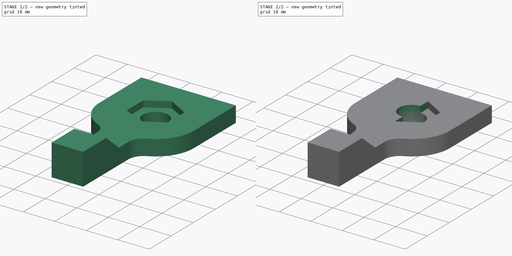
[diagram: build sequence overview — one tinted view per stage of 2, left to right]
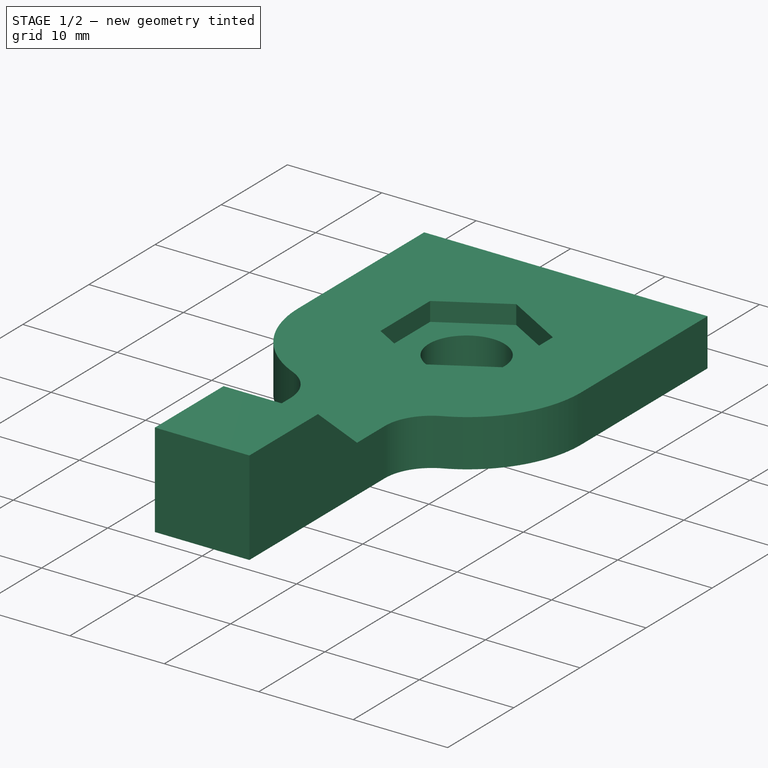
[diagram: stage 1 of 2 — iso view after this stage's code; geometry added in this stage tinted green]
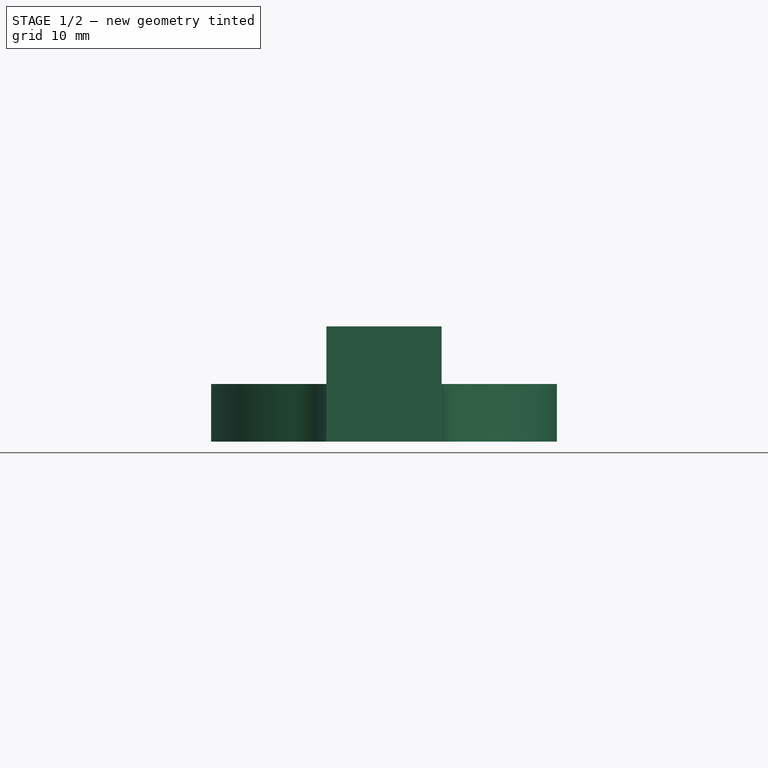
[diagram: stage 1 of 2 — front view after this stage's code; geometry added in this stage tinted green]
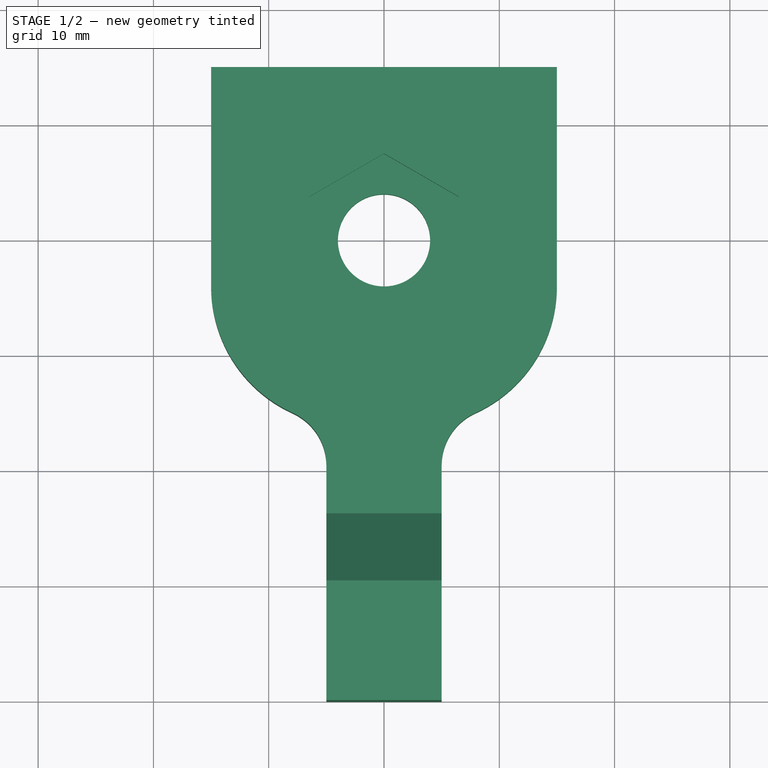
[diagram: stage 1 of 2 — top view after this stage's code; geometry added in this stage tinted green]
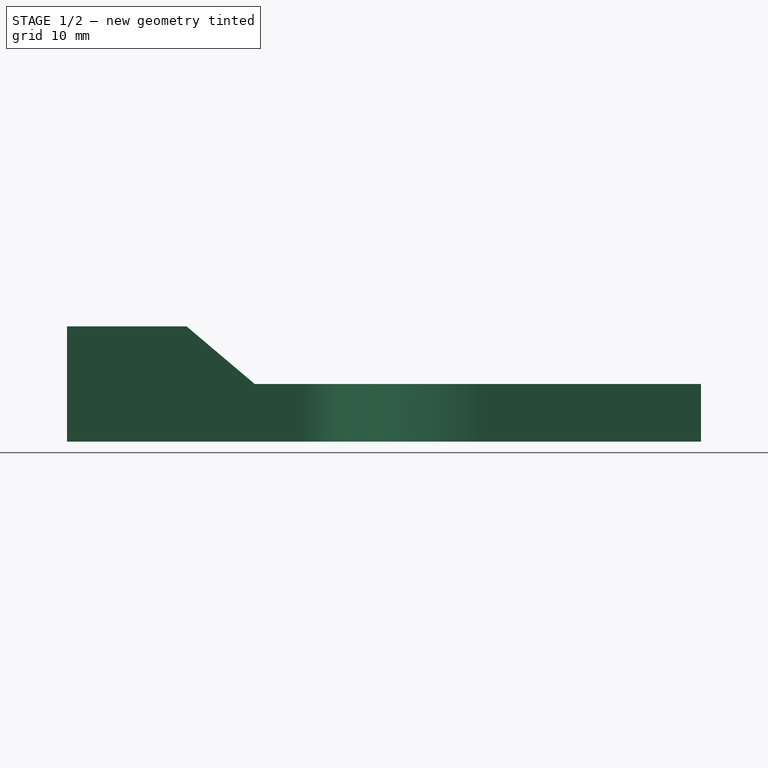
[diagram: stage 1 of 2 — right view after this stage's code; geometry added in this stage tinted green]
FCSTD DOCUMENT  (FreeCAD 0.18.4R)
Label: Unnamed7
License: All rights reserved
LicenseURL: http://en.wikipedia.org/wiki/All_rights_reserved
objects: Sketcher::SketchObject×3, PartDesign::Pad×2, PartDesign::Mirrored×1, PartDesign::Pocket×1, PartDesign::Body×1
note: 11 computed .brp shape members not serialized (recipe doc carries the construction recipe); baked Part::Feature solids carry a one-line shape summary decoded from their .brp

FEATURE [PartDesign::Pad] Pad001  label="Unnamed"
  Length = 100
  Length2 = 100
  Type = 0
FEATURE [PartDesign::Mirrored] Mirrored  label="Unnamed"
FEATURE [Sketcher::SketchObject] Sketch001  label="Sketch002"
  ExternalGeometry = -> [Pad]
  MapMode = 5
  Placement = pos=(0,0,5) rot=(0,0,1;0rad)
  Support = -> [Mirrored]
  sketch-geometry (5):
    g0: LineSegment StartX=-10.3736 StartY=10 StartZ=0 EndX=0 EndY=10 EndZ=0
    g1: LineSegment StartX=-10.3736 StartY=10 StartZ=0 EndX=-16.2853 EndY=5 EndZ=0
    g2: LineSegment StartX=-6.5 StartY=43.7528 StartZ=0 EndX=-6.5 EndY=36.2472 EndZ=0
    g3: LineSegment StartX=-2.7e-15 StartY=32.4944 StartZ=0 EndX=6.5 EndY=36.2472 EndZ=0
    g4: LineSegment StartX=6.5 StartY=43.7528 StartZ=0 EndX=9e-16 EndY=47.5056 EndZ=0
  constraints (11):
    c: Coincident(g1,g2)
    c: Coincident(g2,g0)
    c: Horizontal(g0)
    c: Horizontal(g1)
    c: Vertical(g2)
    c: Coincident(g0,g-3)
    c: PointOnObject(g3,g-3)
    c: Coincident(g4,g3)
    c: Coincident(g4,g0)
    c: Distance(g2) = 5
    c: Coincident(g3,g1)
FEATURE [Sketcher::SketchObject] Sketch002  label="Unnamed"
FEATURE [PartDesign::Pocket] Pocket
  BaseFeature = -> Mirrored
  Length = 2
  Length2 = 100
  Profile = -> Sketch002
  Type = 0
FEATURE [PartDesign::Body] Body
  Group = -> [Sketch,Pad,Sketch001,Pad001,Mirrored,Sketch002,Pocket]
  Origin = -> Origin
  Tip = -> Pocket
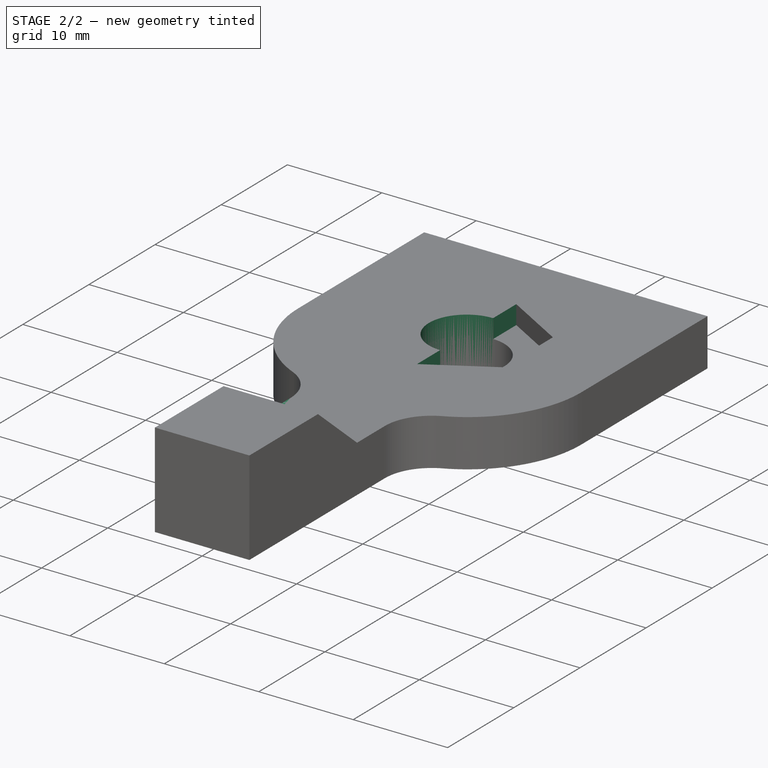
[diagram: stage 2 of 2 — iso view after this stage's code; geometry added in this stage tinted green]
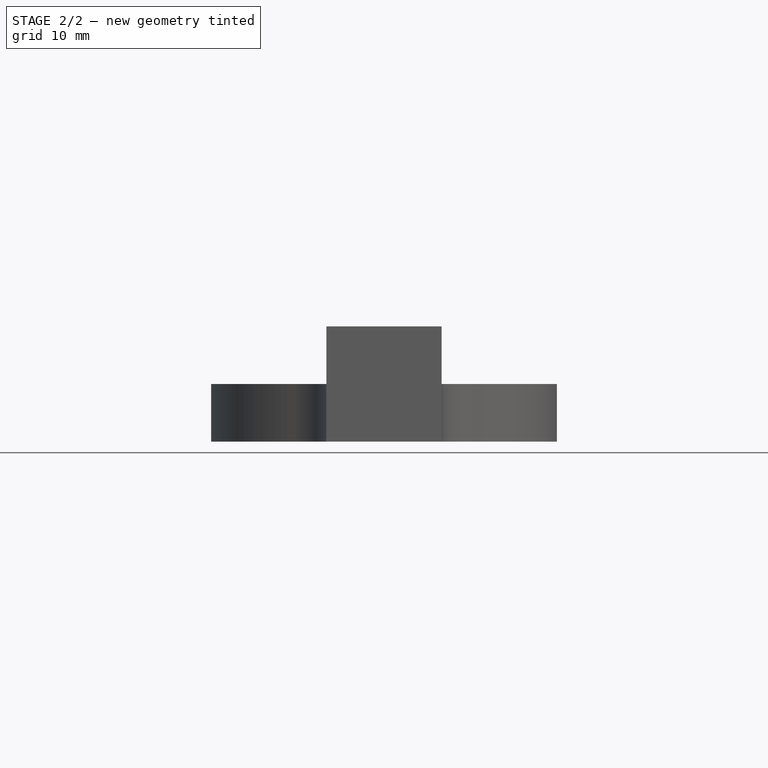
[diagram: stage 2 of 2 — front view after this stage's code; geometry added in this stage tinted green]
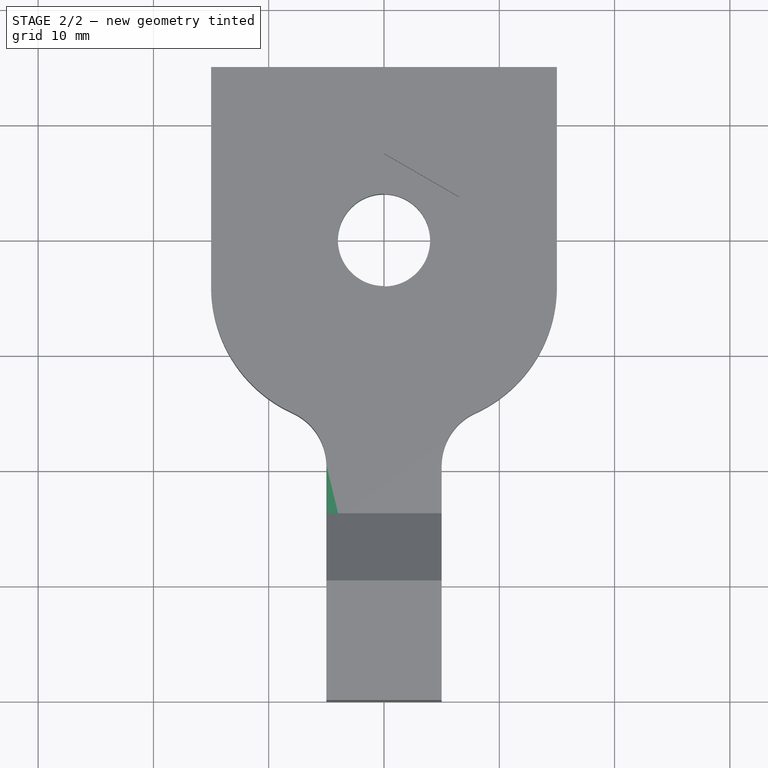
[diagram: stage 2 of 2 — top view after this stage's code; geometry added in this stage tinted green]
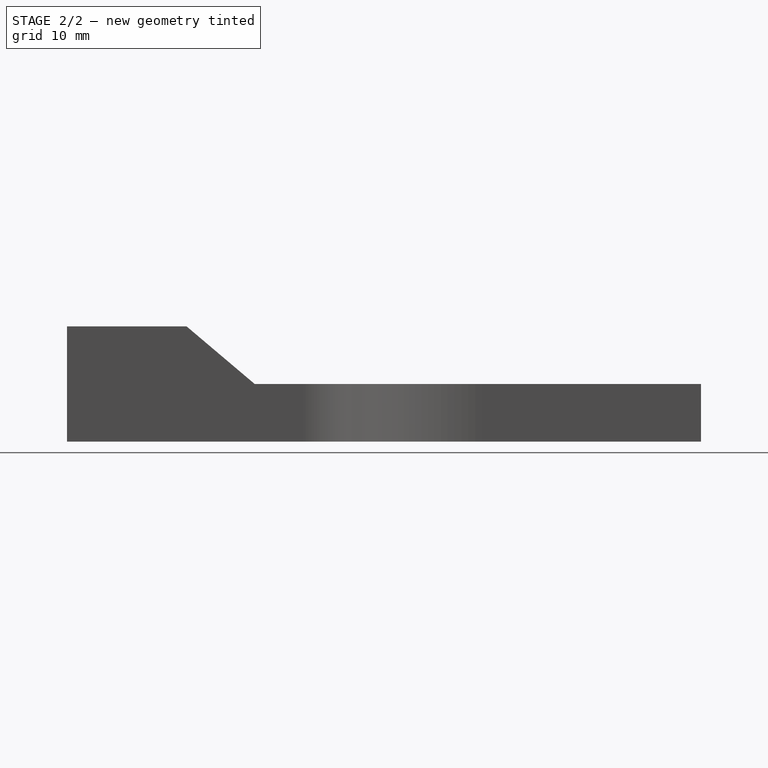
[diagram: stage 2 of 2 — right view after this stage's code; geometry added in this stage tinted green]
FEATURE [Sketcher::SketchObject] Sketch
  MapMode = 5
  Support = -> [XY_Plane]
  constraints (34):
    c: PointOnObject(g0,g-2)
    c: Horizontal(g0)
    c: Distance(g0) = 15
    c: PointOnObject(g1,g-2)
    c: PointOnObject(g1,g-2)
    c: PointOnObject(g1,g-2)
    c: Coincident(g2,g0)
    c: Vertical(g2)
    c: Coincident(g3,g2)
    c: Coincident(g4,g3)
    c: Coincident(g5,g4)
    c: PointOnObject(g5,g-1)
    c: Vertical(g5)
    c: Tangent(g2,g3)
    c: Tangent(g3,g4)
    c: Tangent(g4,g5)
    c: Coincident(g6,g0)
    c: Coincident(g6,g1)
    c: Distance(g6) = 11
    c: Coincident(g7,g5)
    c: Coincident(g7,g-1)
    c: Coincident(g8,g7)
    c: Coincident(g8,g1)
    c: Distance(g1,g7) = 40
    c: Distance(g7) = 5
    c: Coincident(g9,g1)
    c: PointOnObject(g9,g8)
    c: Coincident(g10,g1)
    c: Coincident(g10,g0)
    c: Horizontal(g3,g9)
    c: Equal(g9,g10)
    c: Diameter(g1) = 8
    c: Horizontal(g2,g1)
    c: Diameter(g4) = 10
FEATURE [PartDesign::Pad] Pad
  Length = 5
  Length2 = 100
  Profile = -> Sketch
  Type = 0
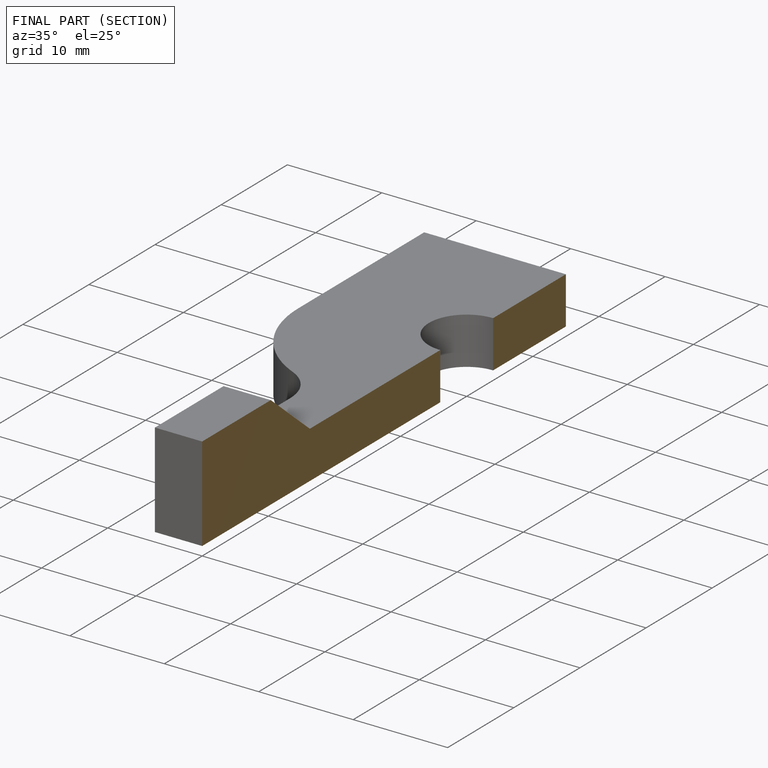
[diagram: finished part — half-section view (interior)]
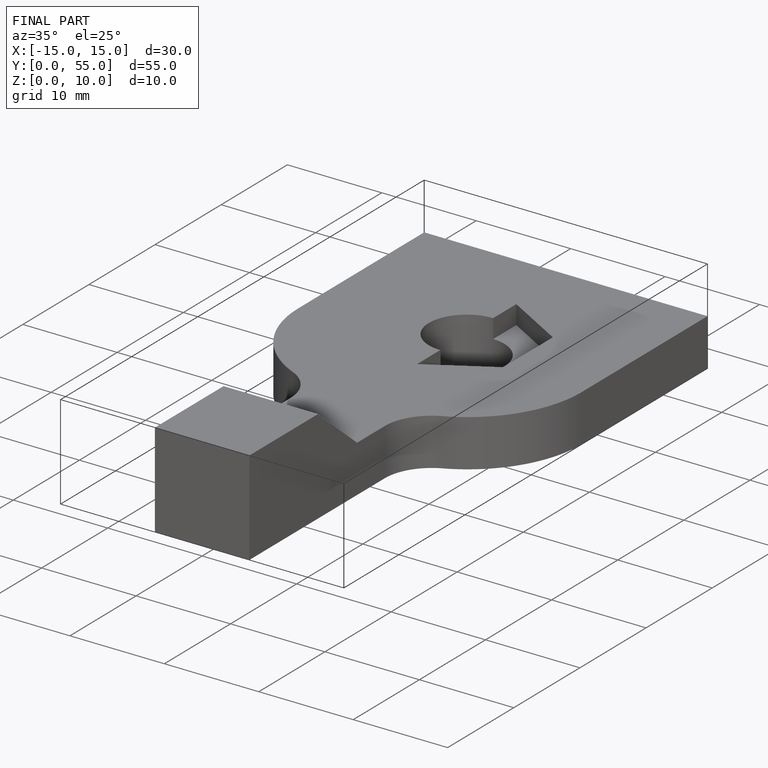
[diagram: finished part — iso view with bounding-box wireframe]
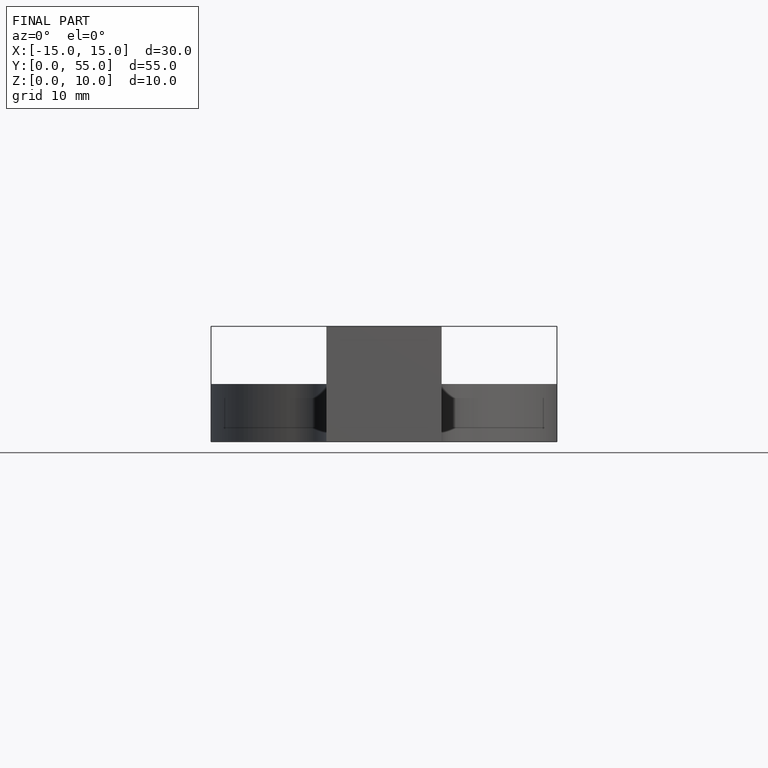
[diagram: finished part — front view with bounding-box wireframe]
